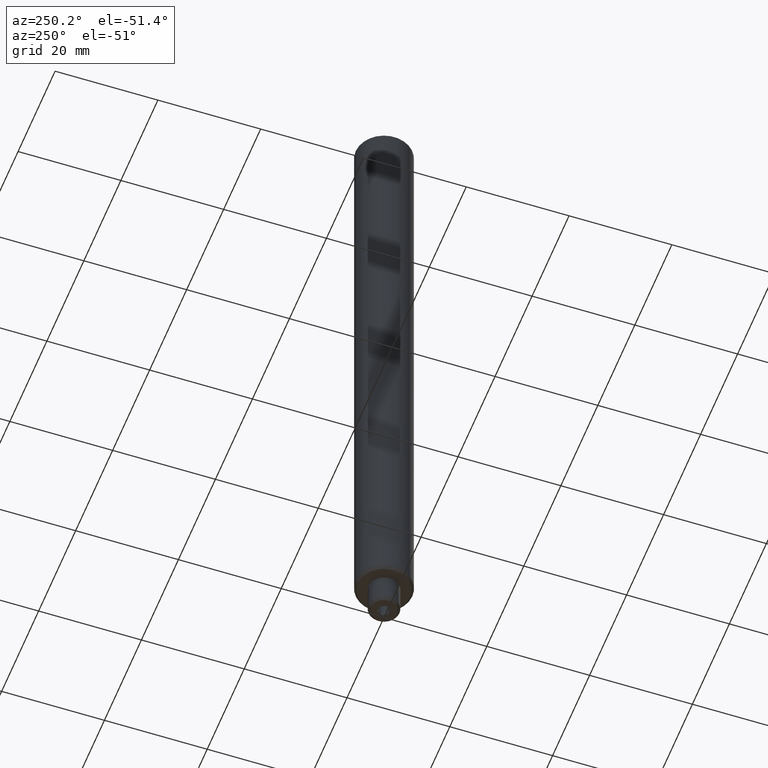
[diagram: clean part render]
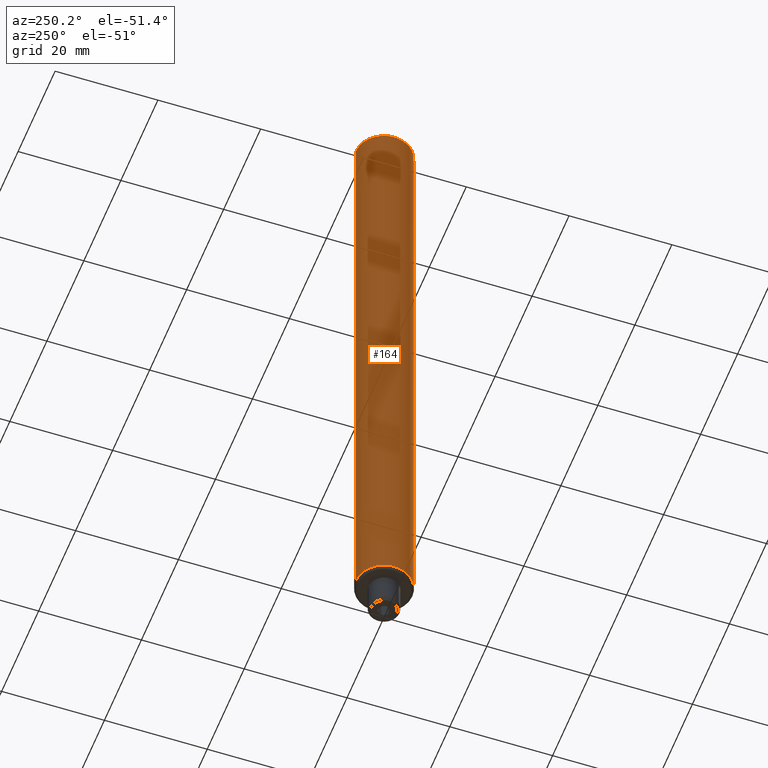
[diagram: same view with one face highlighted and labeled with its STEP entity id]
A machine part, auxiliary view. The second image highlights one B-rep face of the part: STEP entity #164.
In plain terms, the highlighted cylindrical surface (edge-blend (fillet) strip) has radius 5.5 mm, axis along (-0, -0, 1).
Its self-contained STEP definition (entity closure, byte-faithful):
#114=EDGE_CURVE('NONE',#246,#134,#291,.T.);
#134=VERTEX_POINT('NONE',#315);
#146=VERTEX_POINT('NONE',#330);
#152=EDGE_CURVE('NONE',#246,#220,#336,.T.);
#164=ADVANCED_FACE('NONE',(#349),#350,.T.);
#170=EDGE_CURVE('NONE',#134,#146,#358,.T.);
#220=VERTEX_POINT('NONE',#415);
#246=VERTEX_POINT('NONE',#441);
#250=EDGE_CURVE('NONE',#146,#220,#446,.T.);
#291=CIRCLE('',#483,5.49999999999999);
#315=CARTESIAN_POINT('',(-6.73533494602306E-016,-5.49999999999999,0.499999999999987));
#330=CARTESIAN_POINT('',(-6.73533494602306E-016,-5.49999999999999,126.5));
#336=LINE('',#536,#537);
#349=FACE_OUTER_BOUND('',#553,.T.);
#350=CYLINDRICAL_SURFACE('',#554,5.49999999999999);
#358=LINE('',#563,#564);
#415=CARTESIAN_POINT('',(0.0,5.49999999999999,126.5));
#441=CARTESIAN_POINT('',(0.0,5.49999999999999,0.499999999999987));
#446=CIRCLE('',#680,5.49999999999999);
#483=AXIS2_PLACEMENT_3D('',#715,#716,#717);
#536=CARTESIAN_POINT('',(0.0,5.49999999999999,44.3839792060492));
#537=VECTOR('',#777,1000.0);
#553=EDGE_LOOP('',(#796,#797,#798,#799));
#554=AXIS2_PLACEMENT_3D('',#800,#801,#802);
#563=CARTESIAN_POINT('',(-6.73533494602306E-016,-5.49999999999999,44.3839792060492));
#564=VECTOR('',#811,1000.0);
#680=AXIS2_PLACEMENT_3D('',#921,#922,#923);
#715=CARTESIAN_POINT('',(0.0,0.0,0.499999999999987));
#716=DIRECTION('',(0.0,-0.0,1.0));
#717=DIRECTION('',(0.0,1.0,0.0));
#777=DIRECTION('',(0.0,-0.0,1.0));
#796=ORIENTED_EDGE('',*,*,#114,.T.);
#797=ORIENTED_EDGE('',*,*,#170,.T.);
#798=ORIENTED_EDGE('',*,*,#250,.T.);
#799=ORIENTED_EDGE('',*,*,#152,.F.);
#800=CARTESIAN_POINT('',(0.0,0.0,44.3839792060492));
#801=DIRECTION('',(-0.0,-0.0,1.0));
#802=DIRECTION('',(0.0,1.0,0.0));
#811=DIRECTION('',(0.0,-0.0,1.0));
#921=CARTESIAN_POINT('',(0.0,0.0,126.5));
#922=DIRECTION('',(0.0,0.0,-1.0));
#923=DIRECTION('',(0.0,-1.0,0.0));